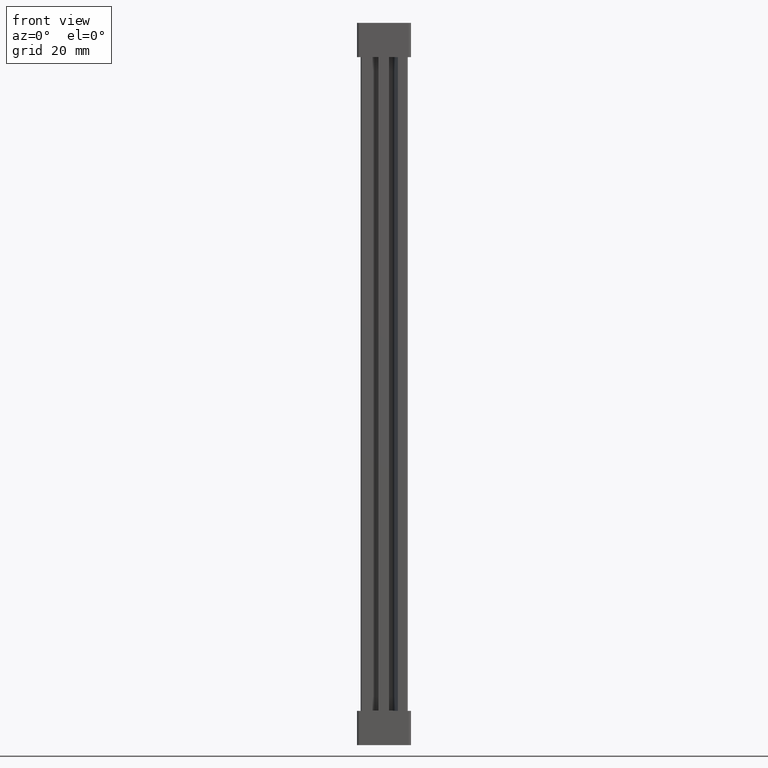
[diagram: clean part render]
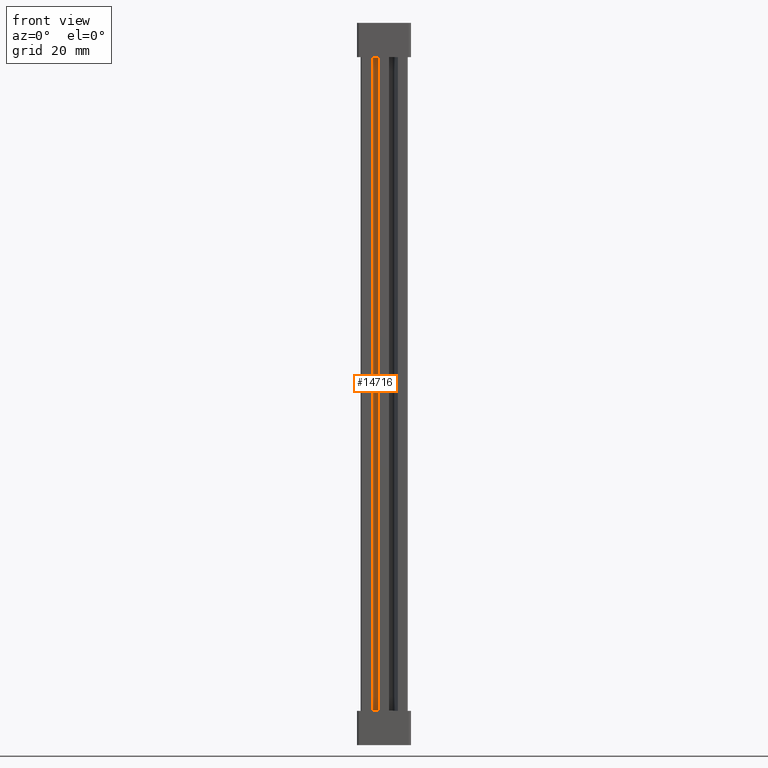
[diagram: same view with one face highlighted and labeled with its STEP entity id]
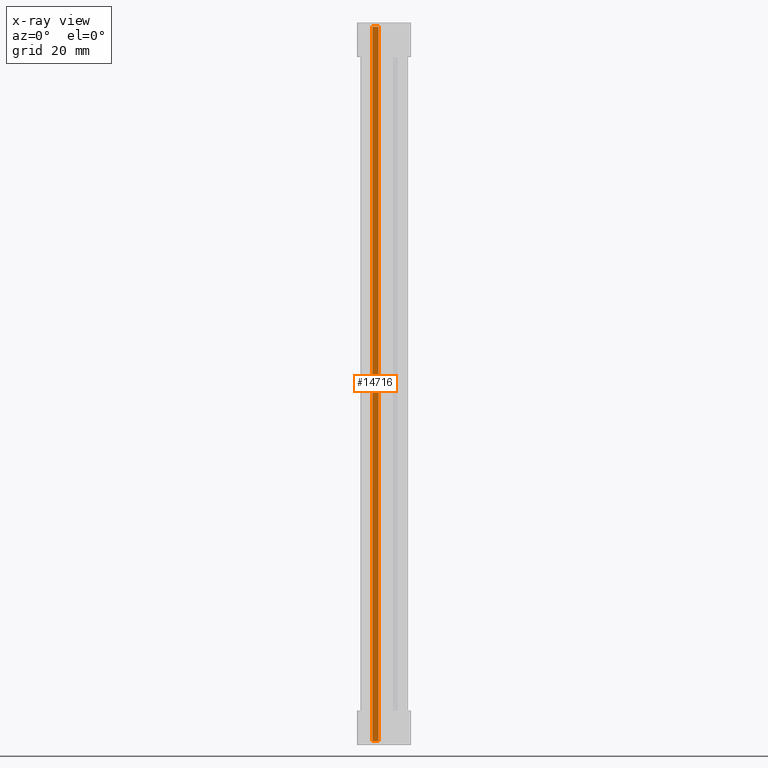
[diagram: x-ray of the same camera — body ghosted, the highlighted face saturated]
A machine part, front view. The second image highlights one B-rep face of the part: STEP entity #14716.
The next image is the same camera in x-ray: the body ghosted, the highlighted face saturated — about 0% of this face is hidden behind the body in this view.
In plain terms, the highlighted planar face has unit normal (0, 1, 0).
Its self-contained STEP definition (entity closure, byte-faithful):
#229 = CARTESIAN_POINT ( 'NONE',  ( 4.849999999999909900, 5.673275106952147000, 217.8000000000280600 ) ) ;
#1158 = CARTESIAN_POINT ( 'NONE',  ( 2.900000000000013700, 5.673275106952147000, 217.8000000000571100 ) ) ;
#1401 = CARTESIAN_POINT ( 'NONE',  ( 2.900000000000015500, 5.673275106952147000, 1.199999999943001300 ) ) ;
#2372 = CARTESIAN_POINT ( 'NONE',  ( 4.849999999999909900, 5.673275106952147000, 1.199999999943848400 ) ) ;
#2575 = FACE_OUTER_BOUND ( 'NONE', #21122, .T. ) ;
#2582 = PLANE ( 'NONE',  #17004 ) ;
#2597 = DIRECTION ( 'NONE',  ( 0.0000000000000000000, -0.0000000000000000000, 1.000000000000000000 ) ) ;
#2608 = DIRECTION ( 'NONE',  ( 0.0000000000000000000, 1.000000000000000000, 0.0000000000000000000 ) ) ;
#2617 = CARTESIAN_POINT ( 'NONE',  ( 6.525548534933081500, 5.673275106952147000, 220.2000000000000200 ) ) ;
#3613 = CARTESIAN_POINT ( 'NONE',  ( 2.900000000000013700, 5.673275106952147000, 220.2000000000000200 ) ) ;
#3622 = DIRECTION ( 'NONE',  ( -0.0000000000000000000, -0.0000000000000000000, -1.000000000000000000 ) ) ;
#3631 = LINE ( 'NONE', #3633, #19004 ) ;
#3633 = CARTESIAN_POINT ( 'NONE',  ( 6.525548534933081500, 5.673275106952147000, 217.7999999999999800 ) ) ;
#3652 = DIRECTION ( 'NONE',  ( 1.000000000000000000, 0.0000000000000000000, -0.0000000000000000000 ) ) ;
#4090 = LINE ( 'NONE', #3613, #18982 ) ;
#4109 = LINE ( 'NONE', #4112, #18972 ) ;
#4111 = DIRECTION ( 'NONE',  ( -0.0000000000000000000, 0.0000000000000000000, -1.000000000000000000 ) ) ;
#4112 = CARTESIAN_POINT ( 'NONE',  ( 4.849999999999909900, 5.673275106952147000, 220.2000000000000200 ) ) ;
#4256 = DIRECTION ( 'NONE',  ( -1.000000000000000000, -0.0000000000000000000, 0.0000000000000000000 ) ) ;
#4293 = LINE ( 'NONE', #4295, #19042 ) ;
#4295 = CARTESIAN_POINT ( 'NONE',  ( 6.525548534933081500, 5.673275106952147000, 1.199999999943850400 ) ) ;
#6299 = EDGE_CURVE ( 'NONE', #11913, #11979, #4090, .T. ) ;
#6310 = EDGE_CURVE ( 'NONE', #11913, #11965, #3631, .T. ) ;
#6330 = EDGE_CURVE ( 'NONE', #11965, #12015, #4109, .T. ) ;
#6393 = EDGE_CURVE ( 'NONE', #12015, #11979, #4293, .T. ) ;
#11913 = VERTEX_POINT ( 'NONE', #1158 ) ;
#11965 = VERTEX_POINT ( 'NONE', #229 ) ;
#11979 = VERTEX_POINT ( 'NONE', #1401 ) ;
#12015 = VERTEX_POINT ( 'NONE', #2372 ) ;
#14716 = ADVANCED_FACE ( 'NONE', ( #2575 ), #2582, .F. ) ;
#15780 = ORIENTED_EDGE ( 'NONE', *, *, #6330, .F. ) ;
#15810 = ORIENTED_EDGE ( 'NONE', *, *, #6299, .T. ) ;
#15812 = ORIENTED_EDGE ( 'NONE', *, *, #6393, .F. ) ;
#15823 = ORIENTED_EDGE ( 'NONE', *, *, #6310, .F. ) ;
#17004 = AXIS2_PLACEMENT_3D ( 'NONE', #2617, #2608, #2597 ) ;
#18972 = VECTOR ( 'NONE', #4111, 1000.000000000000000 ) ;
#18982 = VECTOR ( 'NONE', #3622, 1000.000000000000000 ) ;
#19004 = VECTOR ( 'NONE', #3652, 1000.000000000000000 ) ;
#19042 = VECTOR ( 'NONE', #4256, 1000.000000000000000 ) ;
#21122 = EDGE_LOOP ( 'NONE', ( #15810, #15812, #15780, #15823 ) ) ;